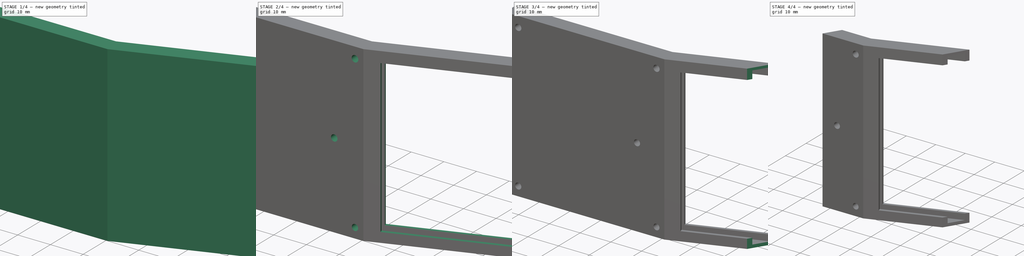
[diagram: build sequence overview — one tinted view per stage of 4, left to right]
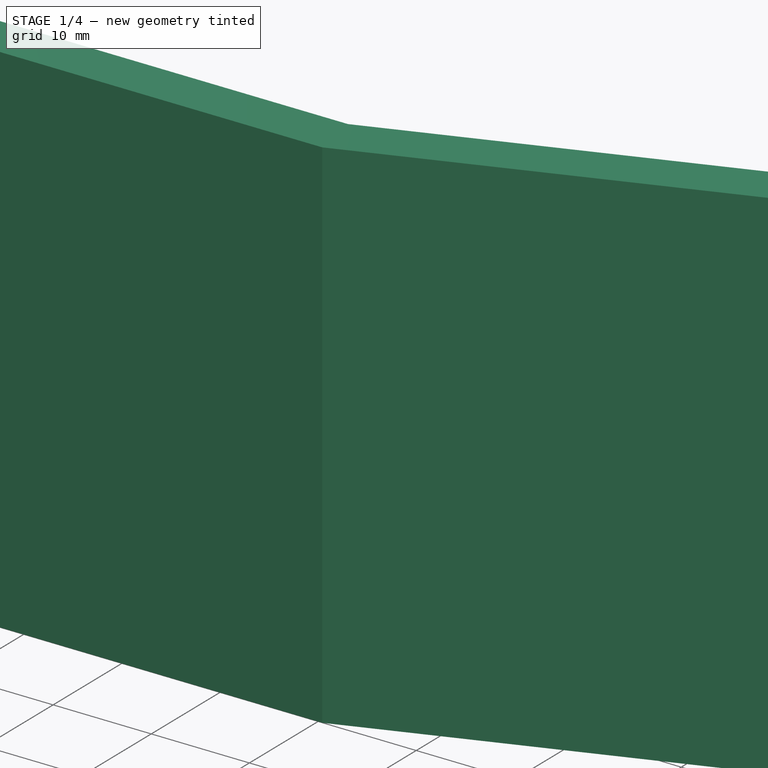
[diagram: stage 1 of 4 — iso view after this stage's code; geometry added in this stage tinted green]
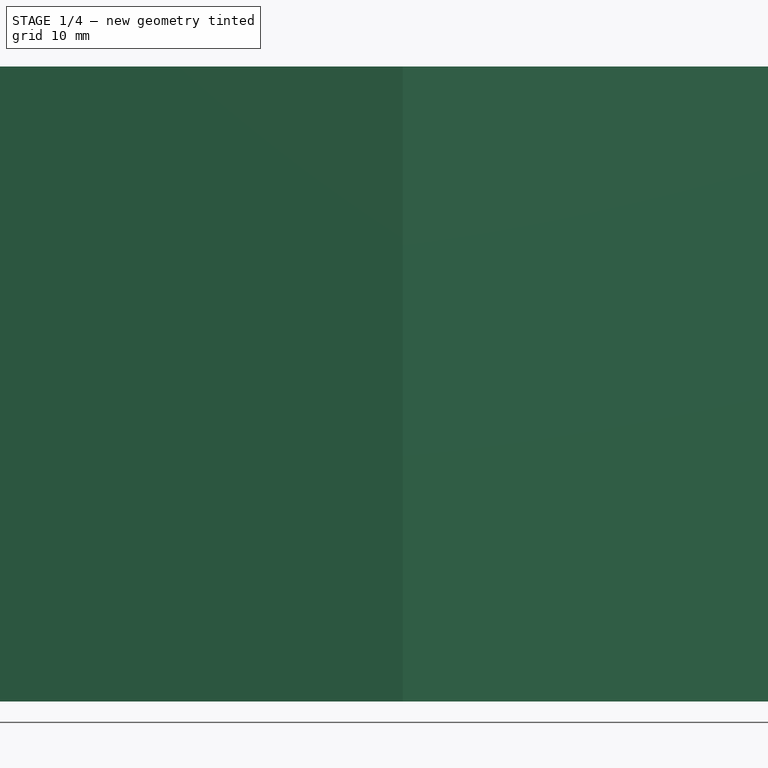
[diagram: stage 1 of 4 — front view after this stage's code; geometry added in this stage tinted green]
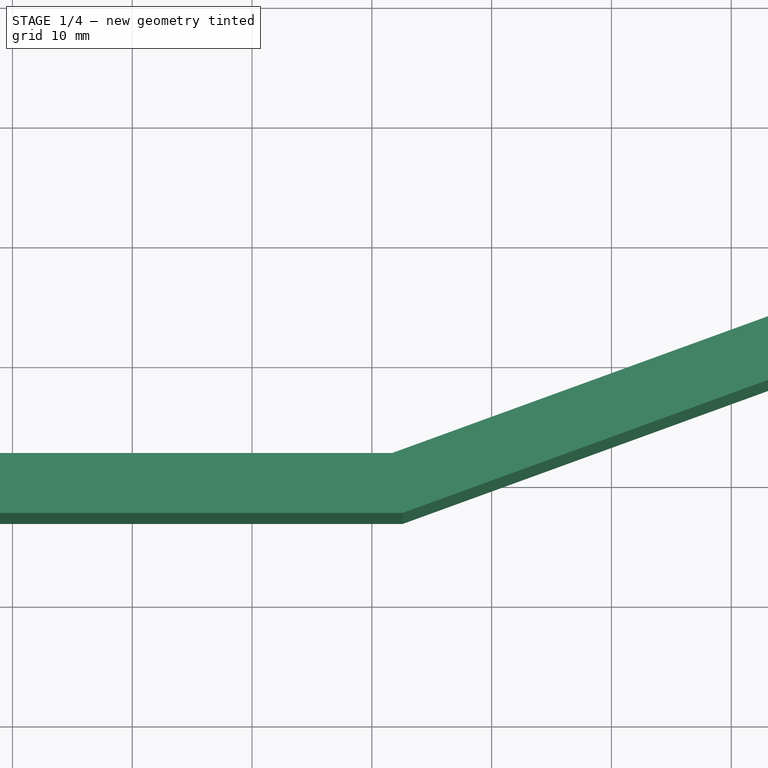
[diagram: stage 1 of 4 — top view after this stage's code; geometry added in this stage tinted green]
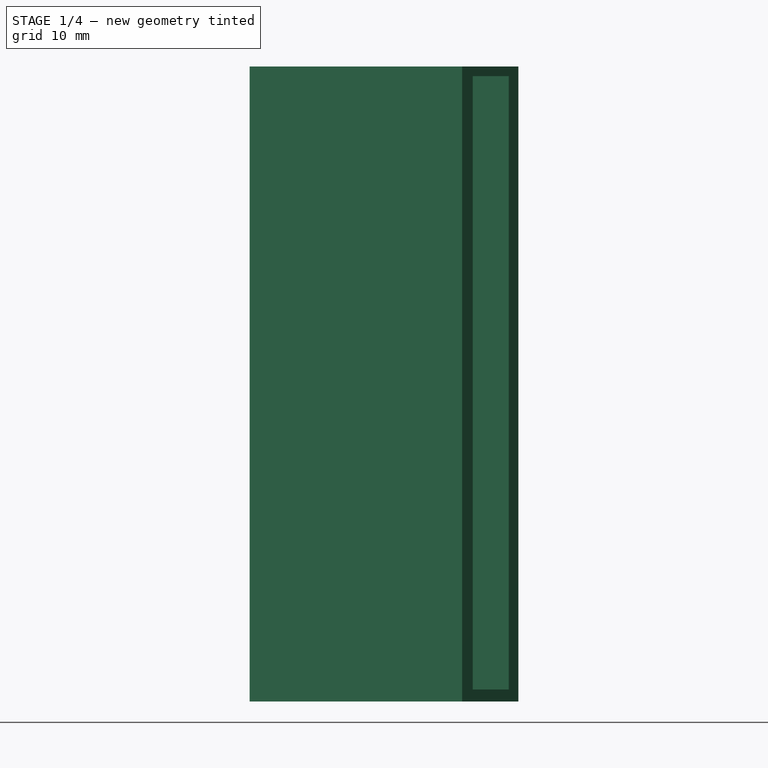
[diagram: stage 1 of 4 — right view after this stage's code; geometry added in this stage tinted green]
FCSTD DOCUMENT  (FreeCAD 0.19R24267 +148 (Git))
Label: Hinge for the mirror2
License: All rights reserved
LicenseURL: http://en.wikipedia.org/wiki/All_rights_reserved
objects: Sketcher::SketchObject×6, PartDesign::FeatureBase×4, PartDesign::Body×4, Part::FeaturePython×4, PartDesign::Pocket×3, App::MeasureDistance×3, App::DocumentObjectGroup×2, Part::Extrusion×1, PartDesign::Hole×1, Part::Face×1
note: 28 computed .brp shape members not serialized (recipe doc carries the construction recipe); baked Part::Feature solids carry a one-line shape summary decoded from their .brp

FEATURE [Sketcher::SketchObject] Sketch
  FullyConstrained = false
  sketch-geometry (6):
    g0: LineSegment StartX=-49.3031 StartY=41.9238 StartZ=0 EndX=1.69692 EndY=41.9238 EndZ=0
    g1: LineSegment StartX=1.69692 StartY=41.9238 StartZ=0 EndX=49.6212 EndY=59.3668 EndZ=0
    g2: LineSegment StartX=49.6212 StartY=59.3668 StartZ=0 EndX=51.3313 EndY=54.6684 EndZ=0
    g3: LineSegment StartX=51.3313 StartY=54.6684 StartZ=0 EndX=2.57855 EndY=36.9238 EndZ=0
    g4: LineSegment StartX=2.57855 StartY=36.9238 StartZ=0 EndX=-49.3031 EndY=36.9238 EndZ=0
    g5: LineSegment StartX=-49.3031 StartY=36.9238 StartZ=0 EndX=-49.3031 EndY=41.9238 EndZ=0
  constraints (16):
    c: Horizontal(g0)
    c: Coincident(g0,g1)
    c: Coincident(g1,g2)
    c: Coincident(g2,g3)
    c: Coincident(g3,g4)
    c: Horizontal(g4)
    c: Coincident(g4,g5)
    c: Coincident(g5,g0)
    c: Parallel(g1,g3)
    c: Perpendicular(g1,g2)
    c: Perpendicular(g5,g0)
    c: Angle(g1,g0) = 2.79253
    c: Distance(g0,g1) = 51
    c: Distance(g0,g0) = 51
    c: Distance(g0,g4) = 5
    c: Distance(g1,g2) = 5
FEATURE [Part::Extrusion] Extrude
  Base = -> Sketch
  Dir = (0,0,1)
  DirMode = 2
  FaceMakerClass = Part::FaceMakerBullseye
  LengthFwd = 53
  LengthRev = 0
  Solid = true
  Symmetric = false
FEATURE [Sketcher::SketchObject] Sketch001
  FullyConstrained = false
  MapMode = 5
  Placement = pos=(62.8968,22.8926,0) rot=(0.443713,0.633687,0.633687;2.30637rad)
  Support = -> [Extrude]
  sketch-geometry (4):
    g0: LineSegment StartX=34.757 StartY=52.2 StartZ=0 EndX=37.957 EndY=52.2 EndZ=0
    g1: LineSegment StartX=37.957 StartY=52.2 StartZ=0 EndX=37.957 EndY=1 EndZ=0
    g2: LineSegment StartX=37.957 StartY=1 StartZ=0 EndX=34.757 EndY=1 EndZ=0
    g3: LineSegment StartX=34.757 StartY=1 StartZ=0 EndX=34.757 EndY=52.2 EndZ=0
  constraints (11):
    c: Coincident(g0,g1)
    c: Coincident(g1,g2)
    c: Coincident(g2,g3)
    c: Coincident(g3,g0)
    c: Horizontal(g0)
    c: Horizontal(g2)
    c: Vertical(g1)
    c: Vertical(g3)
    c: Distance(g0,g0) = 3.2
    c: Distance(g0,g2) = 51.2
    c: DistanceY(g-1,g2) = 1
FEATURE [PartDesign::FeatureBase] BaseFeature
  BaseFeature = -> Extrude
FEATURE [PartDesign::Pocket] Pocket
  BaseFeature = -> BaseFeature
  Length = 51
  Length2 = 100
  Profile = -> Sketch001
  Type = 0
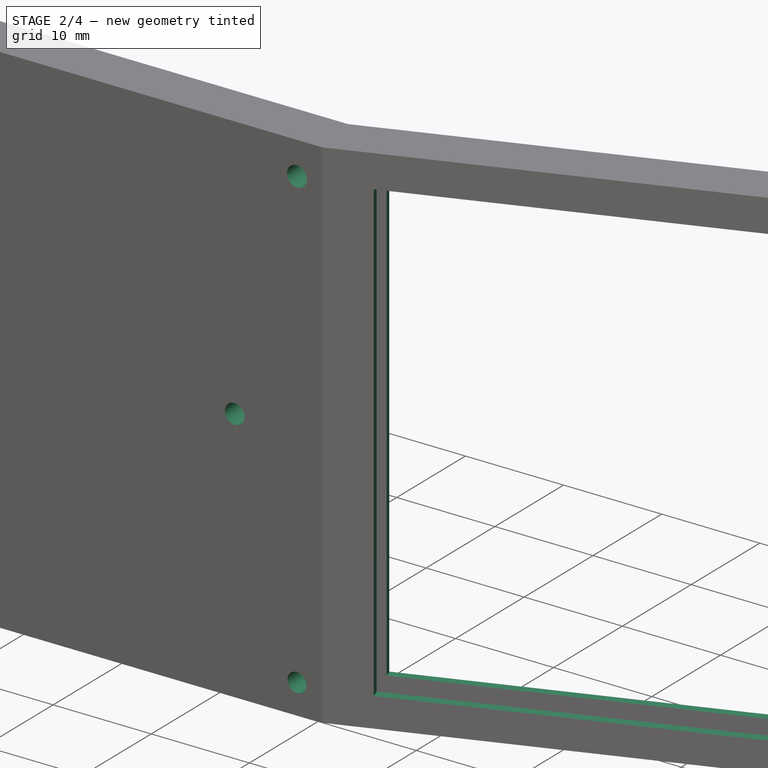
[diagram: stage 2 of 4 — iso view after this stage's code; geometry added in this stage tinted green]
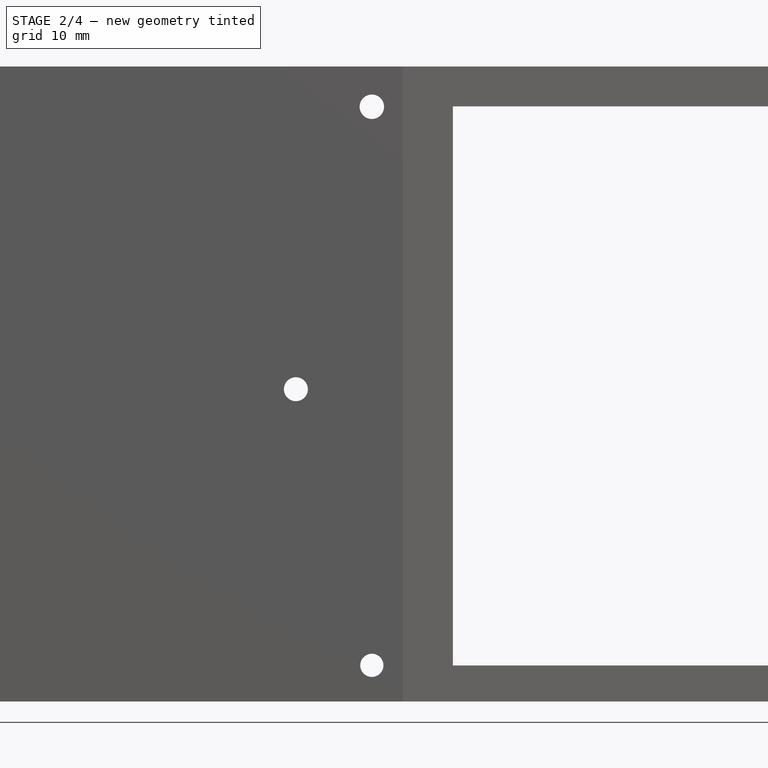
[diagram: stage 2 of 4 — front view after this stage's code; geometry added in this stage tinted green]
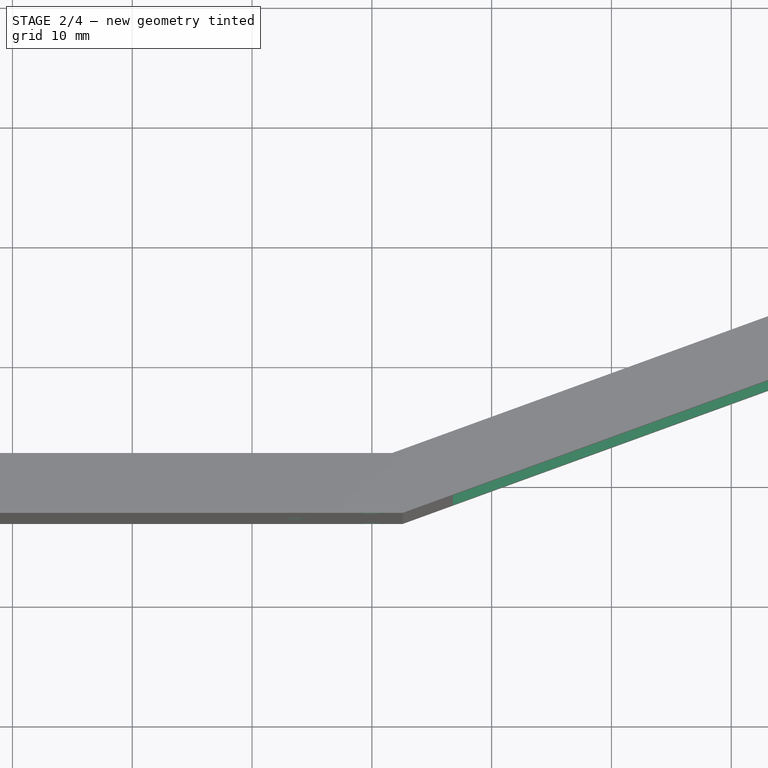
[diagram: stage 2 of 4 — top view after this stage's code; geometry added in this stage tinted green]
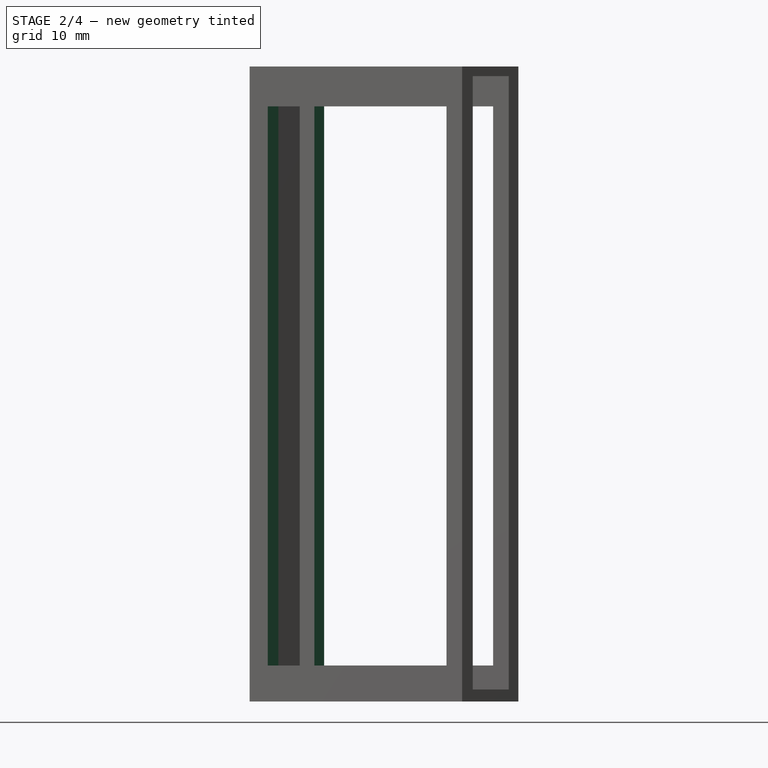
[diagram: stage 2 of 4 — right view after this stage's code; geometry added in this stage tinted green]
FEATURE [Sketcher::SketchObject] Sketch002
  FullyConstrained = false
  MapMode = 5
  Placement = pos=(-13.2756,36.4743,0) rot=(-0.123724,0.701674,0.701674;3.38779rad)
  Support = -> [Pocket]
  sketch-geometry (4):
    g0: LineSegment StartX=-63.1143 StartY=3.00195 StartZ=0 EndX=-19.5035 EndY=3.00195 EndZ=0
    g1: LineSegment StartX=-19.5035 StartY=3.00195 StartZ=0 EndX=-19.5035 EndY=49.6726 EndZ=0
    g2: LineSegment StartX=-19.5035 StartY=49.6726 StartZ=0 EndX=-63.1143 EndY=49.6726 EndZ=0
    g3: LineSegment StartX=-63.1143 StartY=49.6726 StartZ=0 EndX=-63.1143 EndY=3.00195 EndZ=0
  constraints (8):
    c: Coincident(g0,g1)
    c: Coincident(g1,g2)
    c: Coincident(g2,g3)
    c: Coincident(g3,g0)
    c: Horizontal(g0)
    c: Horizontal(g2)
    c: Vertical(g1)
    c: Vertical(g3)
FEATURE [PartDesign::Pocket] Pocket001
  BaseFeature = -> Pocket
  Length = 5
  Length2 = 100
  Profile = -> Sketch002
  Type = 0
FEATURE [Sketcher::SketchObject] Sketch003
  FullyConstrained = false
  MapMode = 5
  Placement = pos=(0,41.9238,0) rot=(0,0.707107,0.707107;3.14159rad)
  Support = -> [Pocket001]
  sketch-geometry (4):
    g0: Circle CenterX=0 CenterY=3.0163 CenterZ=0 NormalX=0 NormalY=0 NormalZ=1 AngleXU=0 Radius=0.967921
    g1: Circle CenterX=0 CenterY=49.6428 CenterZ=0 NormalX=0 NormalY=0 NormalZ=1 AngleXU=0 Radius=1.02027
    g2: Circle CenterX=44.9656 CenterY=3.01632 CenterZ=0 NormalX=0 NormalY=0 NormalZ=1 AngleXU=0 Radius=1.01002
    g3: Circle CenterX=44.9656 CenterY=49.6428 CenterZ=0 NormalX=0 NormalY=0 NormalZ=1 AngleXU=0 Radius=1.02027
  constraints (2):
    c: PointOnObject(g0,g-2)
    c: PointOnObject(g1,g-2)
FEATURE [PartDesign::Pocket] Pocket002
  BaseFeature = -> Pocket001
  Length = 5
  Length2 = 100
  Profile = -> Sketch003
  Type = 0
FEATURE [App::MeasureDistance] Distance  label="Distance: 51.00 mm"
  Distance = 51.0034
  P1 = (48.4799,59.6016,52)
  P2 = (48.1854,60.1118,1)
FEATURE [App::MeasureDistance] Distance001  label="Distance: 3.20 mm"
  Distance = 3.20305
  P1 = (49.1255,58.4834,29.2374)
  P2 = (47.6255,61.0814,30.3597)
FEATURE [App::MeasureDistance] Distance002  label="Distance: 51.11 mm"
  Distance = 51.1128
  P1 = (47.6255,61.0814,40.9705)
  P2 = (3.6686,35.2171,37.6036)
FEATURE [Sketcher::SketchObject] Sketch004
  FullyConstrained = false
  MapMode = 5
  Placement = pos=(0,41.9238,0) rot=(0,0.707107,0.707107;3.14159rad)
  Support = -> [Pocket002]
  sketch-geometry (1):
    g0: Circle CenterX=6.34129 CenterY=26.0663 CenterZ=0 NormalX=0 NormalY=0 NormalZ=1 AngleXU=0 Radius=1.00725
FEATURE [PartDesign::Hole] Hole
  BaseFeature = -> Pocket002
  Depth = 25
  DepthType = 0
  Diameter = 2
  DrillForDepth = false
  DrillPoint = 1
  DrillPointAngle = 118
  HoleCutCountersinkAngle = 90
  HoleCutCustomValues = false
  HoleCutDepth = 0
  HoleCutDiameter = 6.1
  HoleCutType = 0
  ModelActualThread = false
  Profile = -> Sketch004
  Tapered = false
  TaperedAngle = 90
  ThreadAngle = 0
  ThreadClass = 0
  ThreadCutOffInner = 0
  ThreadCutOffOuter = 0
  ThreadDirection = 0
  ThreadFit = 0
  ThreadPitch = 0
  ThreadSize = 0
  ThreadType = 0
  Threaded = false
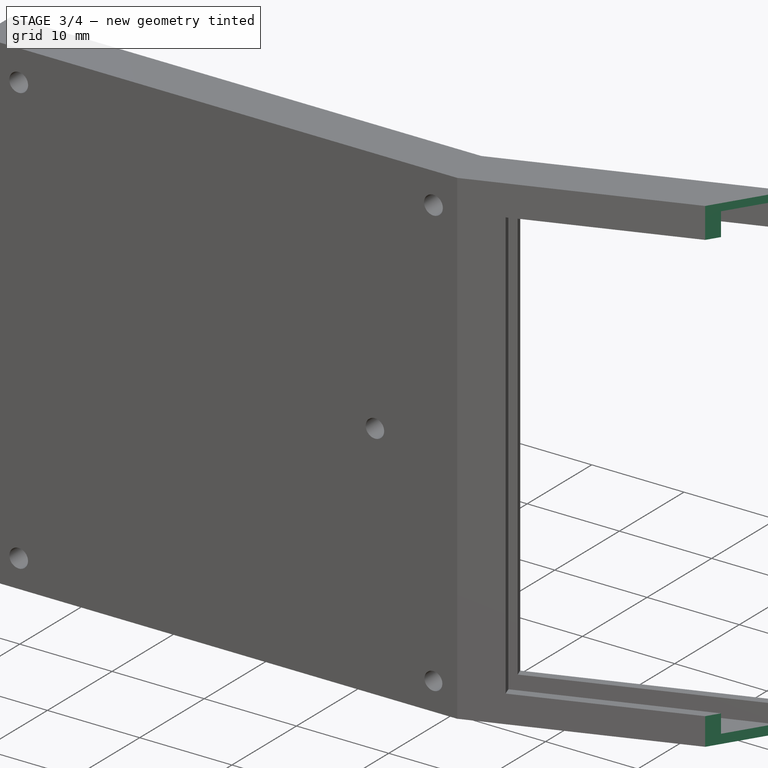
[diagram: stage 3 of 4 — iso view after this stage's code; geometry added in this stage tinted green]
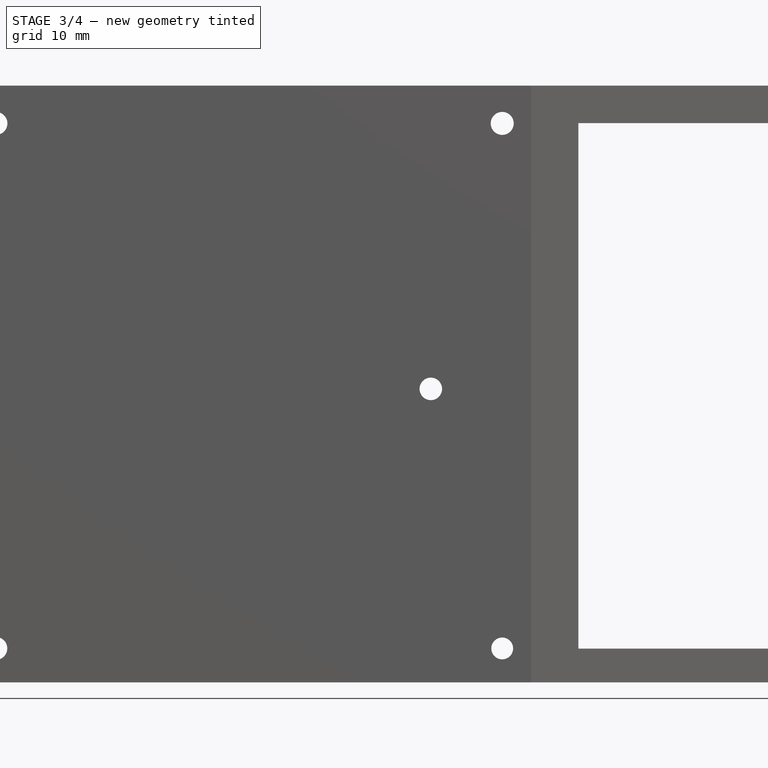
[diagram: stage 3 of 4 — front view after this stage's code; geometry added in this stage tinted green]
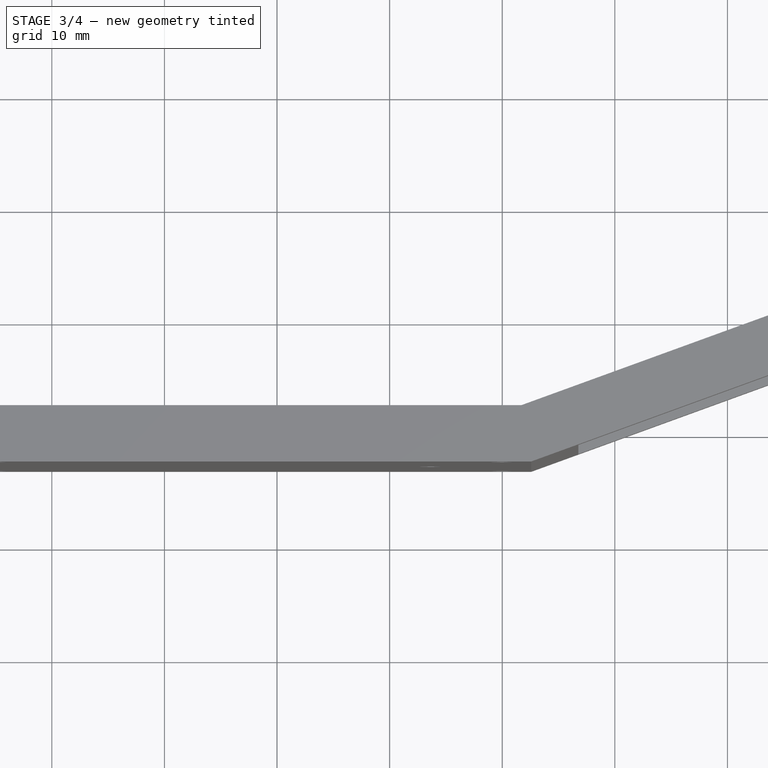
[diagram: stage 3 of 4 — top view after this stage's code; geometry added in this stage tinted green]
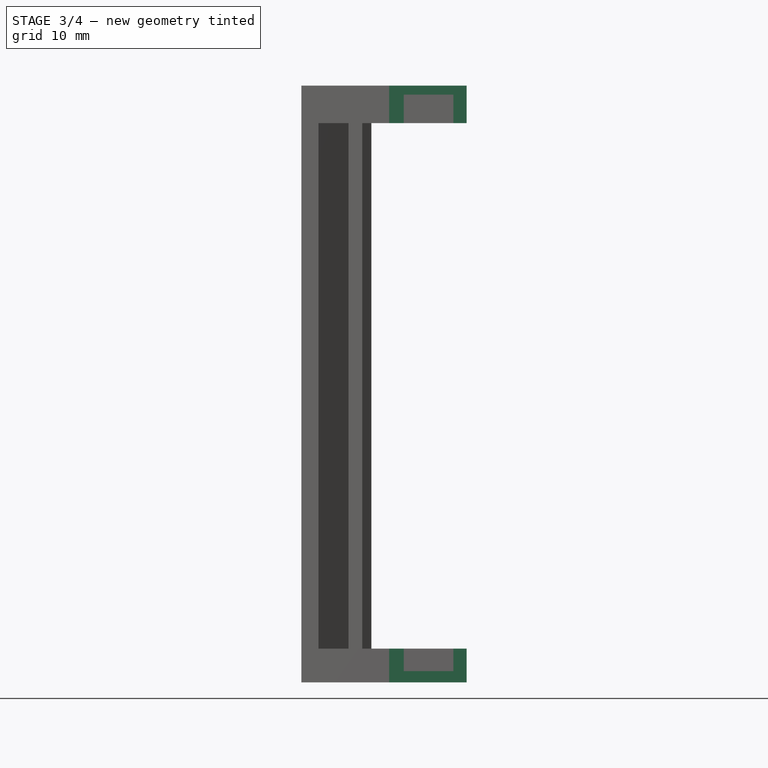
[diagram: stage 3 of 4 — right view after this stage's code; geometry added in this stage tinted green]
FEATURE [Sketcher::SketchObject] Sketch005
  FullyConstrained = false
  MapMode = 5
  Placement = pos=(62.8968,22.8926,0) rot=(0.443713,0.633687,0.633687;2.30637rad)
  Support = -> [Hole]
  sketch-geometry (4):
    g0: LineSegment StartX=84.2403 StartY=-18.1253 StartZ=0 EndX=10.1727 EndY=-18.1253 EndZ=0
    g1: LineSegment StartX=10.1727 StartY=-18.1253 StartZ=0 EndX=10.1727 EndY=65.2008 EndZ=0
    g2: LineSegment StartX=10.1727 StartY=65.2008 StartZ=0 EndX=84.2403 EndY=65.2008 EndZ=0
    g3: LineSegment StartX=84.2403 StartY=65.2008 StartZ=0 EndX=84.2403 EndY=-18.1253 EndZ=0
  constraints (8):
    c: Coincident(g0,g1)
    c: Coincident(g1,g2)
    c: Coincident(g2,g3)
    c: Coincident(g3,g0)
    c: Horizontal(g0)
    c: Horizontal(g2)
    c: Vertical(g1)
    c: Vertical(g3)
FEATURE [PartDesign::Body] Body
  BaseFeature = -> Extrude
  Group = -> [BaseFeature,Sketch001,Pocket,Sketch002,Pocket001,Sketch003,Pocket002,Sketch004,Hole,Sketch005]
  Origin = -> Origin
  Tip = -> Hole
FEATURE [Part::Face] Face
  FaceMakerClass = Part::FaceMakerBullseye
  Placement = pos=(-56,43,0) rot=(0,0,1;-0.907571rad)
  Sources = -> [Sketch005]
FEATURE [PartDesign::FeatureBase] Clone
  BaseFeature = -> Face
  Placement = pos=(-56,43,0) rot=(0,0,1;-0.907571rad)
FEATURE [PartDesign::Body] Body001
  Group = -> [Clone]
  Origin = -> Origin001
  Placement = pos=(-21,15,0) rot=(0,0,1;0rad)
  Tip = -> Clone
FEATURE [Part::FeaturePython] Slice  # WARN: FeaturePython — macro-defined, semantics opaque (R4)
  Base = -> Body
  Mode = 1
  Tolerance = 0
  Tools = -> [Face]
FEATURE [Part::FeaturePython] Slice_child0  label="Slice.0"  # WARN: FeaturePython — macro-defined, semantics opaque (R4)
  Base = -> Slice
  FilterType = 1
  Invert = false
  OverrideMaxVal = 0
  WindowFrom = 80
  WindowTo = 100
  items = 0
FEATURE [App::DocumentObjectGroup] GrExplode_Slice  label="Exploded Slice"
  Group = -> [Slice_child0]
FEATURE [PartDesign::FeatureBase] BaseFeature001
  BaseFeature = -> Slice_child0
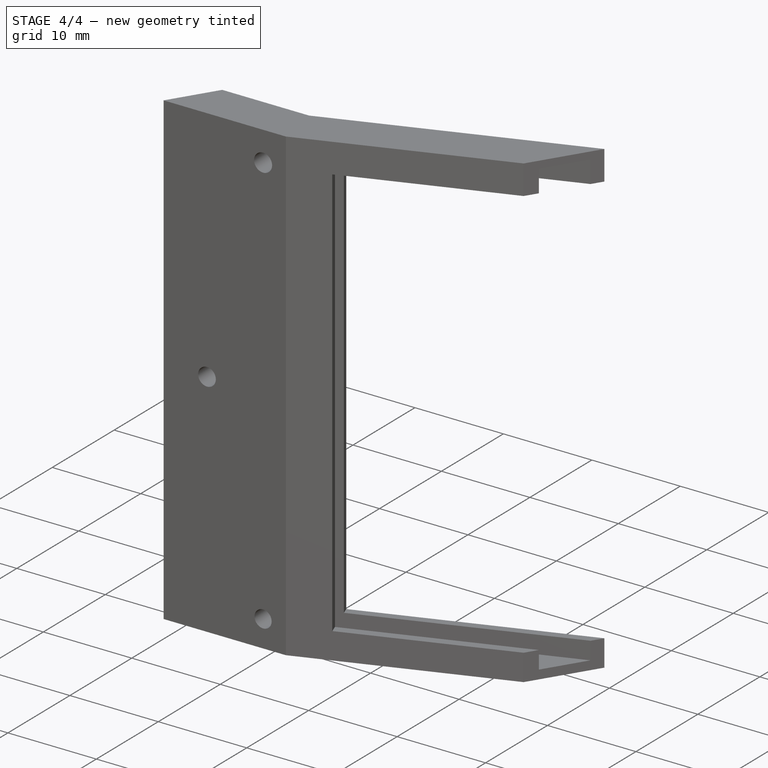
[diagram: stage 4 of 4 — iso view after this stage's code; geometry added in this stage tinted green]
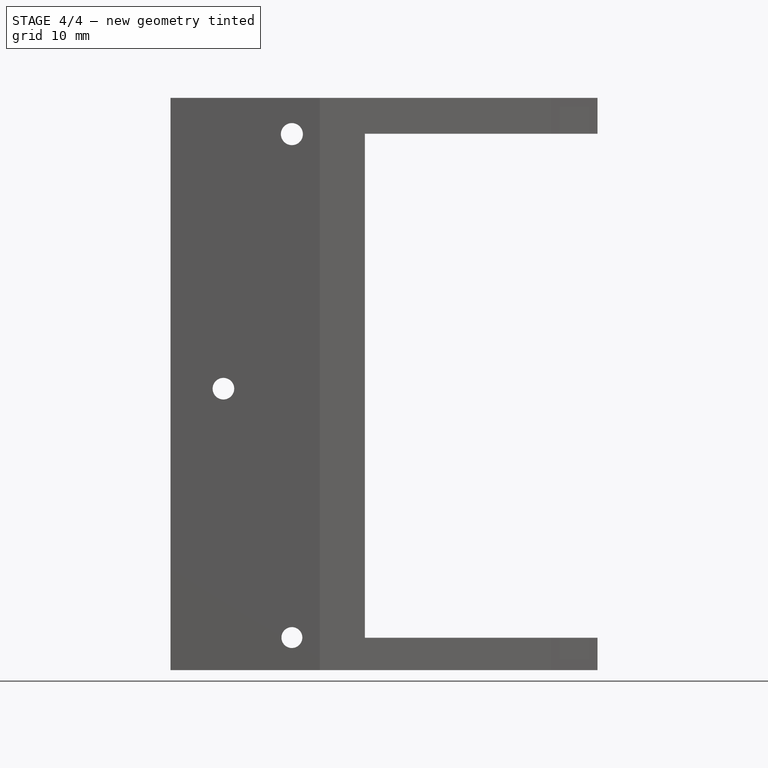
[diagram: stage 4 of 4 — front view after this stage's code; geometry added in this stage tinted green]
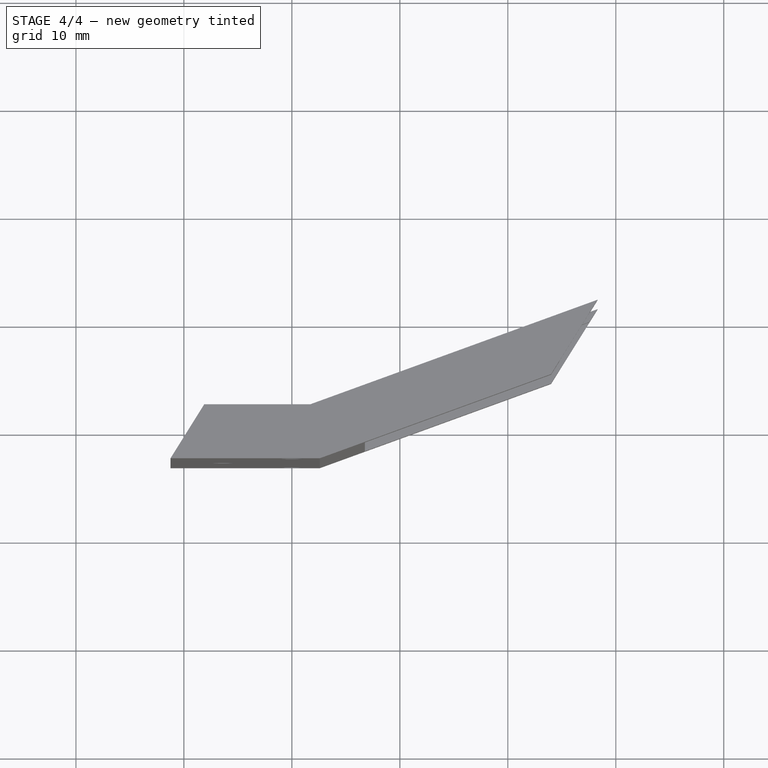
[diagram: stage 4 of 4 — top view after this stage's code; geometry added in this stage tinted green]
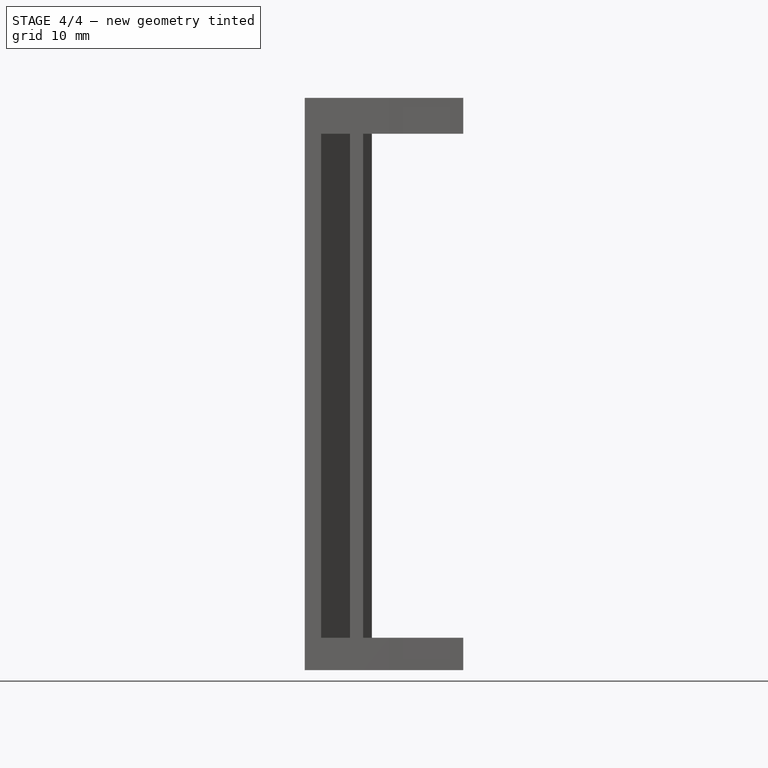
[diagram: stage 4 of 4 — right view after this stage's code; geometry added in this stage tinted green]
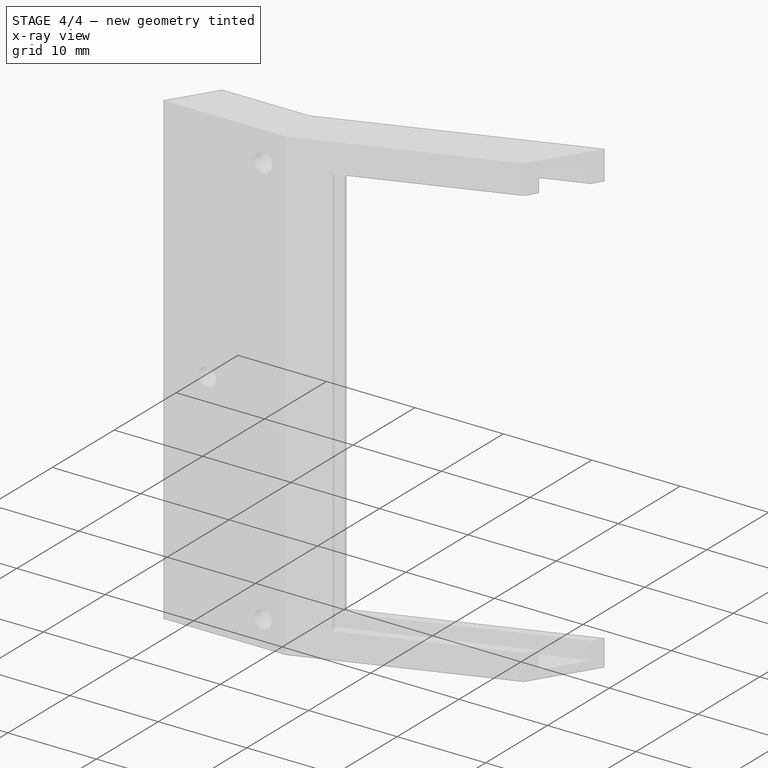
[diagram: stage 4 of 4 — x-ray composite at the iso view; earlier geometry ghosted, this stage's added geometry solid]
FEATURE [PartDesign::Body] Body002
  BaseFeature = -> Slice_child0
  Group = -> [BaseFeature001]
  Origin = -> Origin002
  Tip = -> BaseFeature001
FEATURE [Part::FeaturePython] Slice001  # WARN: FeaturePython — macro-defined, semantics opaque (R4)
  Base = -> Body002
  Mode = 1
  Tolerance = 0
  Tools = -> [Body001]
FEATURE [Part::FeaturePython] Slice001_child1  label="Slice001.1"  # WARN: FeaturePython — macro-defined, semantics opaque (R4)
  Base = -> Slice001
  FilterType = 1
  Invert = false
  OverrideMaxVal = 0
  WindowFrom = 80
  WindowTo = 100
  items = 1
FEATURE [App::DocumentObjectGroup] GrExplode_Slice001  label="Exploded Slice001"
  Group = -> [Slice001_child1]
FEATURE [PartDesign::FeatureBase] BaseFeature002
  BaseFeature = -> Slice001_child1
FEATURE [PartDesign::Body] Body003
  BaseFeature = -> Slice001_child1
  Group = -> [BaseFeature002]
  Origin = -> Origin003
  Tip = -> BaseFeature002
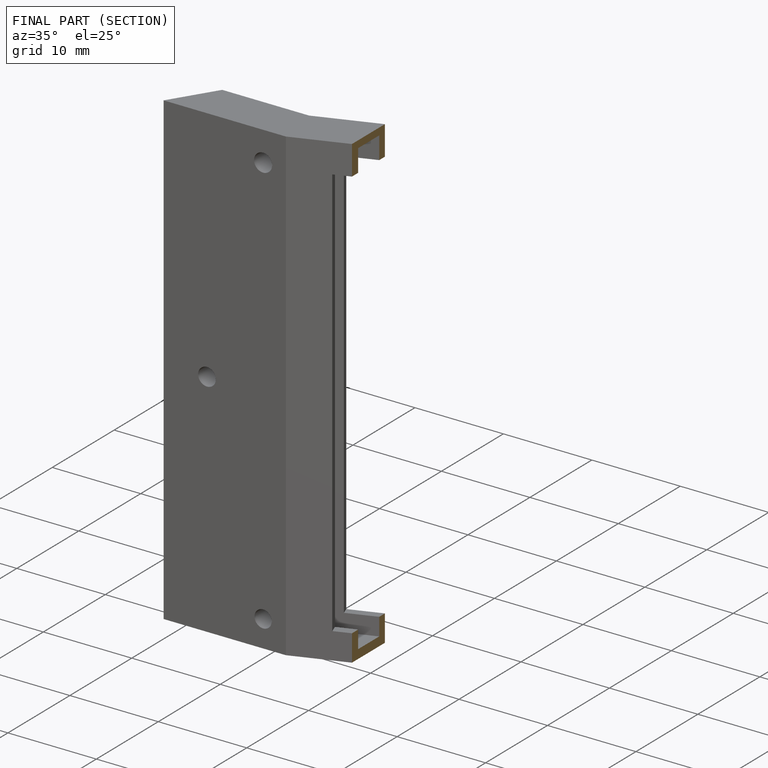
[diagram: finished part — half-section view (interior)]
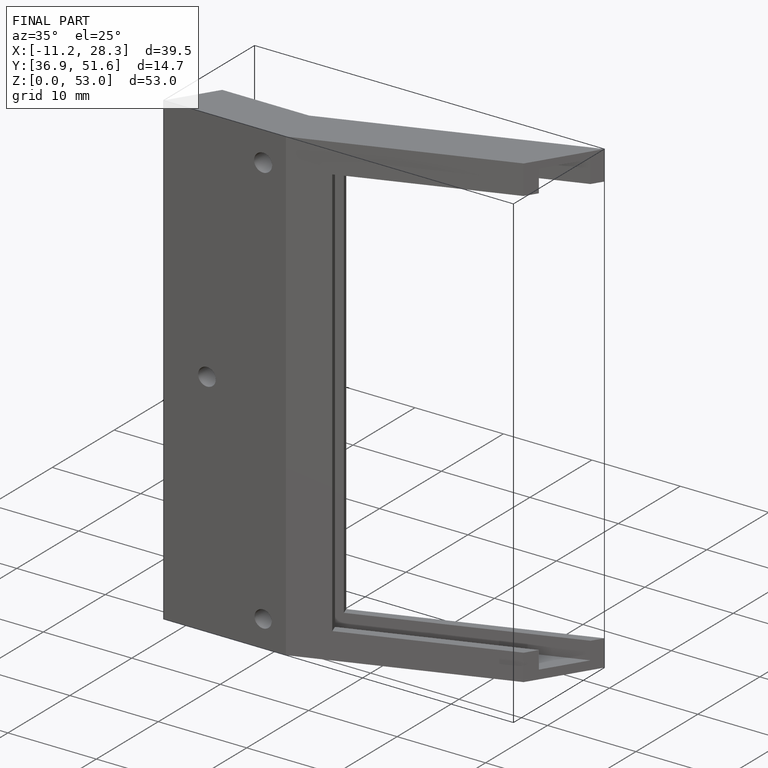
[diagram: finished part — iso view with bounding-box wireframe]
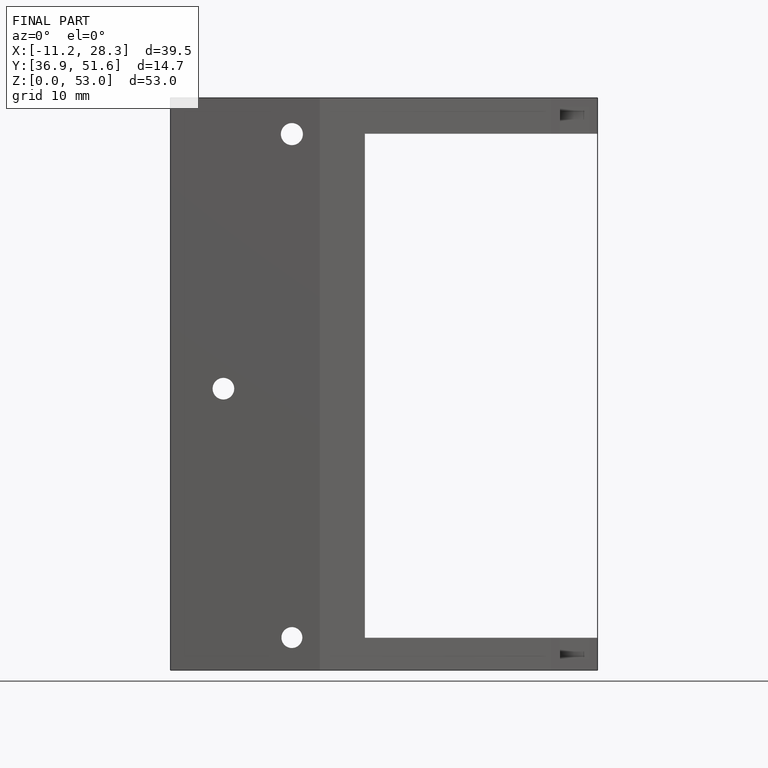
[diagram: finished part — front view with bounding-box wireframe]
